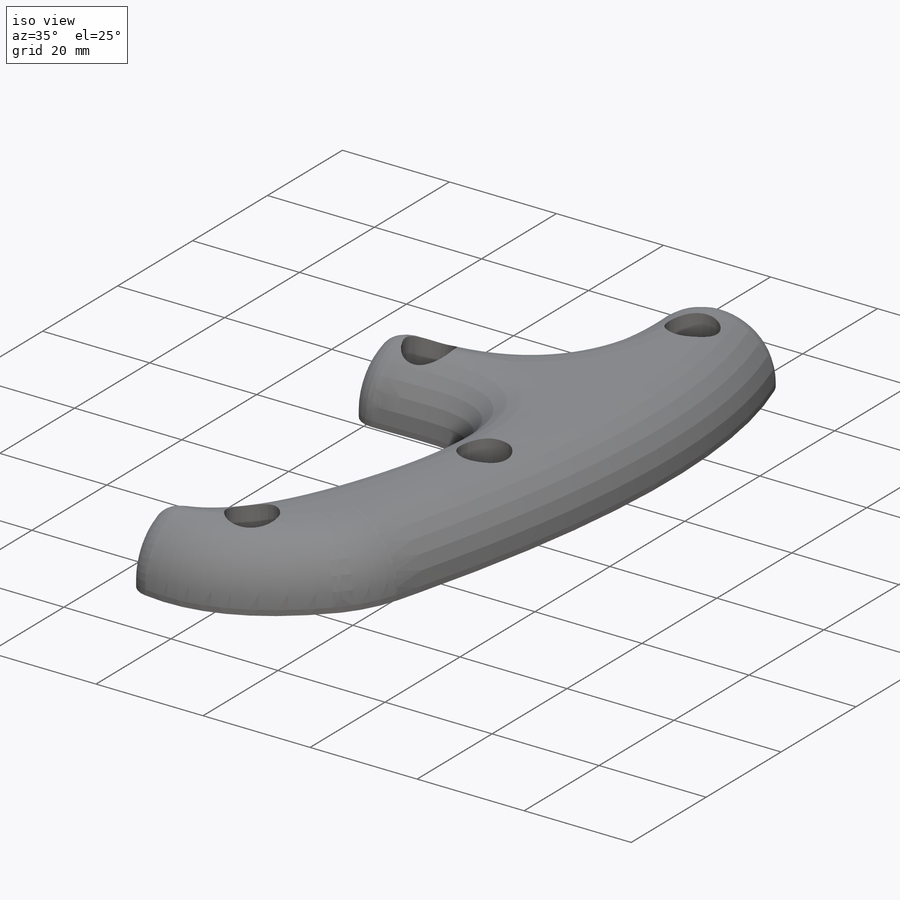
[diagram: iso view]
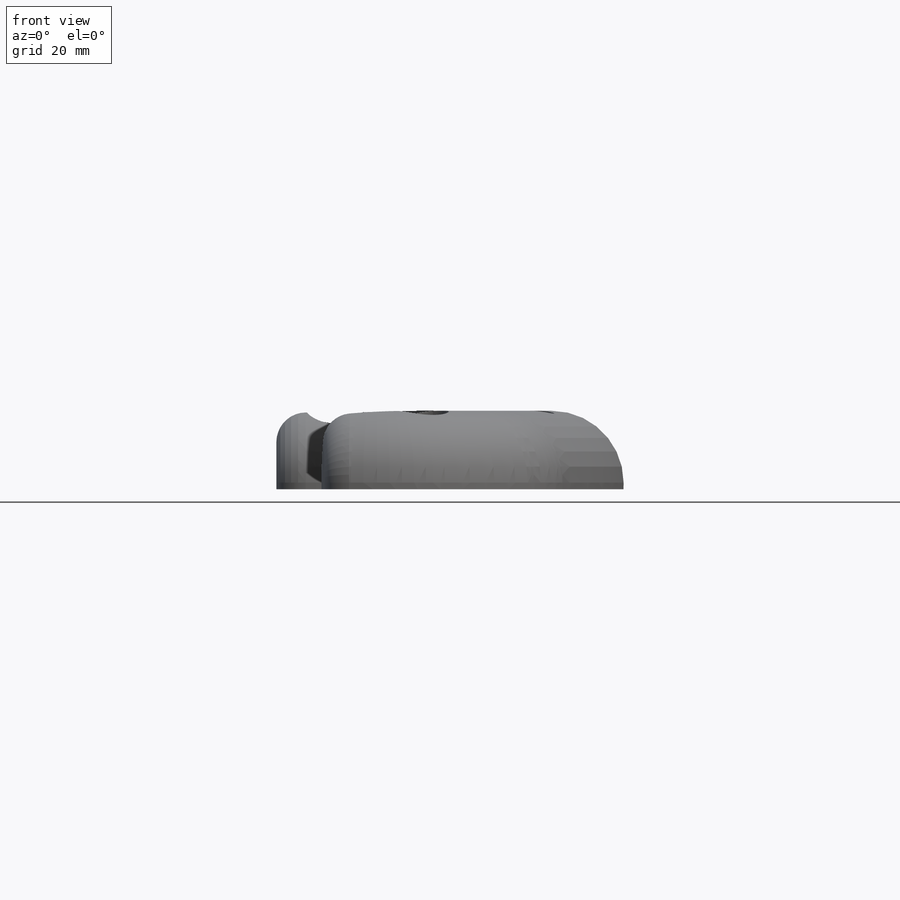
[diagram: front view]
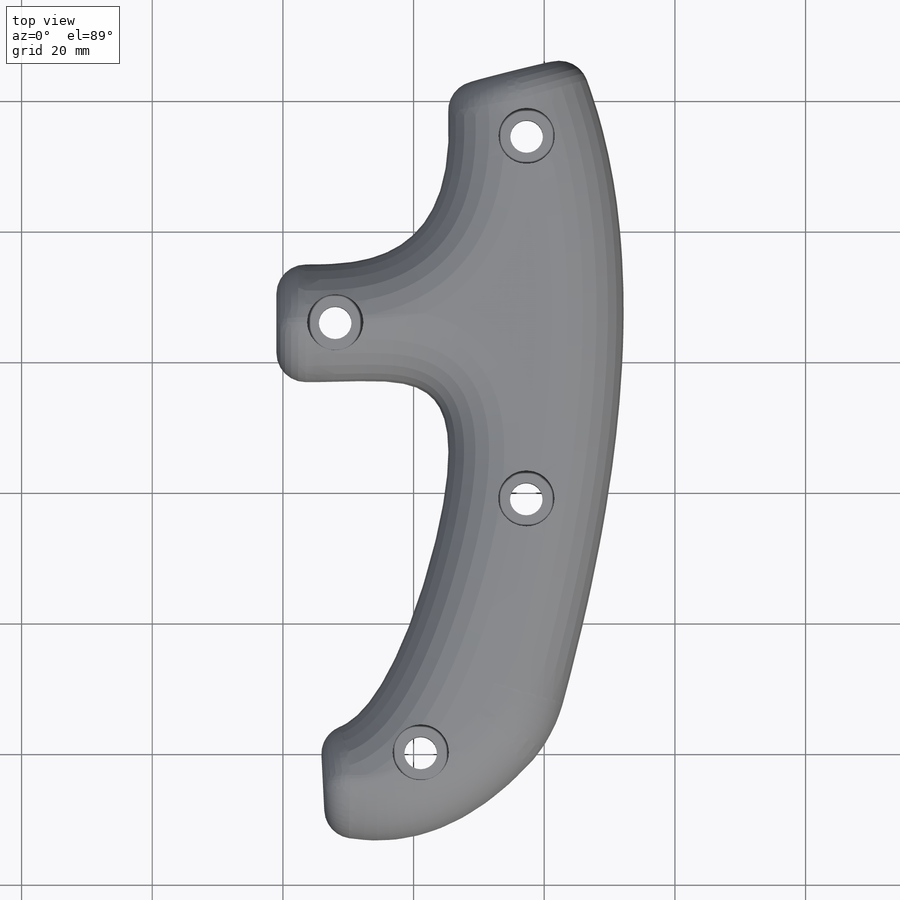
[diagram: top view]
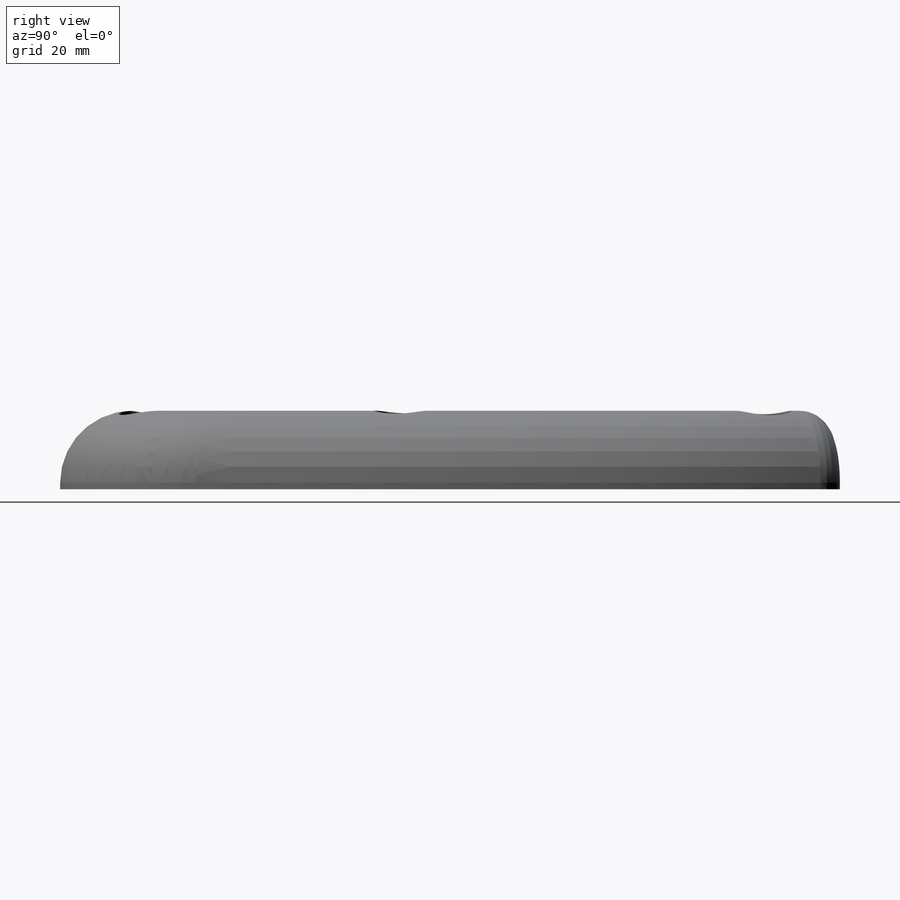
[diagram: right view]
SOLIDWORKS PART (.sldprt)
format: sldprt  version: not decoded by parser v0  size: 662,528 bytes
history: native  units: mm
features: fillet x4, sketch x3, cut_extrude x2, material x1, extrude x1 (+13 scaffold rows collapsed)
feature tree (24):
  scaffold x13  (default folders/planes/origin — collapsed)
  material  "Material <not specified>"
  sketch  "Sketch2"  dims[c1.D29=~5.858828mm c2.D29=5.25mm c2.D37=9.0mm c2.D46=~77.035127mm c2.D51=77.107mm c2.D53=9.0mm c2.D57=15.0mm c2.D59=500.0mm c2.D61=500.0mm c2.D65=~41.568385mm c2.D66=~5.831771mm c2.D67=~9.848938mm c2.D71=650.0mm c2.D74=4.0mm c2.D76=11.6mm c2.D79=11.6mm c2.D81=11.6mm c2.D83=11.6mm c2.D86=11.6mm c2.D87=11.6mm c2.D90=~9.086516mm c2.D64=9.0mm c3.D65=11.6mm c3.D89=11.6mm c3.D87=11.6mm c3.D94=9.4mm c3.D95=3.0mm c3.D97=3.0mm c3.D100=5.0mm c3.D101=5.0mm c3.D105=5.0mm c3.D107=5.0mm c3.D110=4.0mm c3.D111=4.0mm c3.D112=4.0mm c3.D113=4.0mm c3.D122=3.0mm c3.D1=78.0mm c3.D2=70.0mm c3.D3=70.0mm c3.D4=52.0mm c3.D5=6.0mm c3.D6=25.0mm c3.D7=3.0mm c3.D8=36.0mm c3.D9=35.0mm c3.D10=70.0mm c3.D11=15.0mm c3.D12=38.0mm c3.D13=29.0mm c3.D14=16.5mm c3.D15=25.0mm c3.D16=70.0mm c3.D17=18.0mm c3.D18=86.5mm c3.D19=86.5mm c3.D20=15.0mm c3.D21=104.0mm c3.D22=36.25mm c3.D23=15.88mm c3.D24=3.5mm c3.D25=19.0mm c3.D26=5.5mm c3.D27=3.0mm c3.D28=3.0mm c3.D30=0.0mm c3.D31=5.0mm c3.D32=5.0mm c3.D33=3.0mm c3.D34=3.0mm c3.D35=9.0mm c3.D36=9.0mm c3.D38=27.0mm c3.D39=14.0mm c3.D40=23.0mm c3.D41=5.5mm c3.D42=28.0mm c3.D43=20.0mm c3.D44=13.0mm c3.D45=46.0mm c4.D38=23.0mm c4.D39=14.0mm c4.D40=27.0mm c4.D41=5.5mm c4.D42=23.0mm c4.D43=28.0mm c4.D44=20.0mm c4.D45=13.0mm c4.D46=46.0mm c4.D47=54.0mm c4.D48=8.0mm c4.D49=1.5mm c4.D50=3.0mm c4.D52=9.0mm c4.D54=9.0mm c4.D55=15.0mm c4.D56=15.0mm c4.D58=2.25mm c4.D60=9.0mm c4.D61=27.0mm c4.D62=29.0mm c4.D63=4.5mm c4.D64=13.0mm c5.D62=29.0mm c5.D31=5.0mm c5.D32=5.0mm c5.D67=0.0mm c5.D68=12.0mm c5.D69=4.5mm c5.D70=81.0mm c5.D72=1.05mm c5.D73=27.5mm c5.D76=~6.311278mm c5.D77=16.0mm c5.D78=6.0mm c5.D80=25.0mm c5.D82=25.0mm c5.D84=25.0mm c5.D85=12.5mm c5.D88=25.0mm c5.D89=30.0mm c5.D52=9.0mm c5.D53=9.0mm c5.D54=29.0mm c6.D62=13.0mm c6.D63=4.5mm c6.D64=9.0mm c6.D65=9.0mm c6.D91=~7.749093mm c6.D76=16.0mm c6.D77=6.0mm c6.D78=17.0mm c6.D85=17.0mm c6.D90=12.5mm c7.D91=~16.940267mm c7.D89=12.5mm c8.D91=30.0mm c8.D92=23.0mm c8.D93=34.0mm c8.D96=8.1mm c8.D97=3.35mm c8.D98=10.0mm c8.D99=2.3mm c8.D102=9.0mm c8.D103=~9.000008mm c9.D102=9.0mm c9.D103=9.0mm c9.D104=18.0mm c9.D106=38.25mm c9.D108=4.0mm c9.D109=15.0mm c9.D114=55.5mm c9.D115=55.5mm c9.D116=73.5mm c9.D117=73.5mm c9.D118=31.0mm c9.D119=31.0mm c9.D120=31.0mm c9.D121=31.0mm c9.D123=8.1mm c9.D124=3.35mm c9.D75=6.0]
  extrude  "Boss-Extrude1"  Depth=12mm
  fillet  "Fillet4"  Radius=11mm
  fillet  "Fillet5"  Radius=3mm
  fillet  "Fillet6"  Radius=4.5mm
  sketch  "Sketch3"  dims[D1=8.6mm D2=8.6mm D3=8.6mm D4=8.6mm]
  cut_extrude  "Cut-Extrude1"  Depth=5mm
  sketch  "Sketch4"  dims[D1=8.6mm]
  cut_extrude  "Cut-Extrude2"  Depth=1mm
  fillet  "Fillet7"  Radius=10mm
decode coverage: 10 of 10 modeling features carry decoded parameters
note: ~ marks probable driven/reference dimensions
note: suppression state not decoded; provenance and decode notes live in map.json
